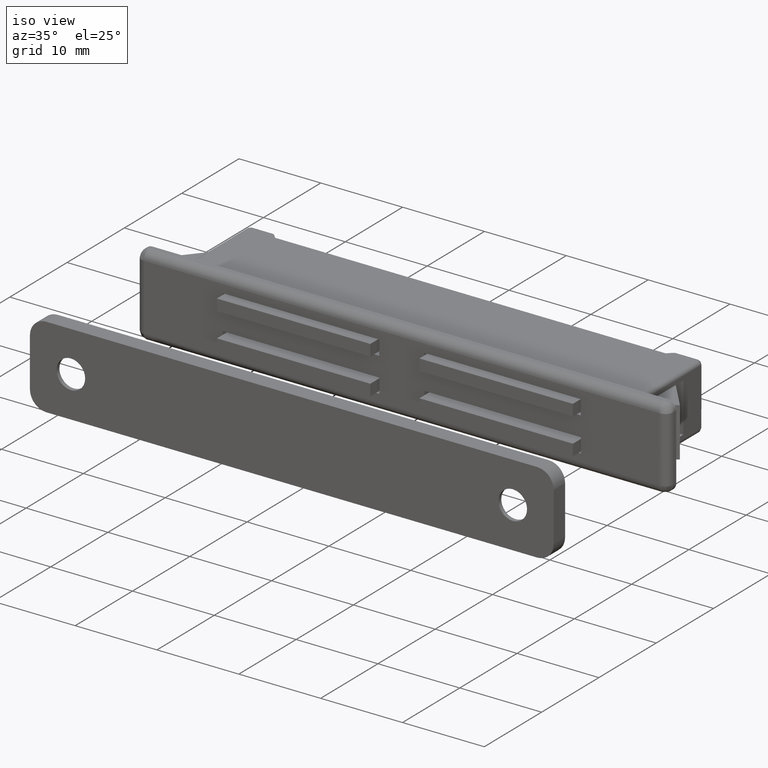
[diagram: clean part render]
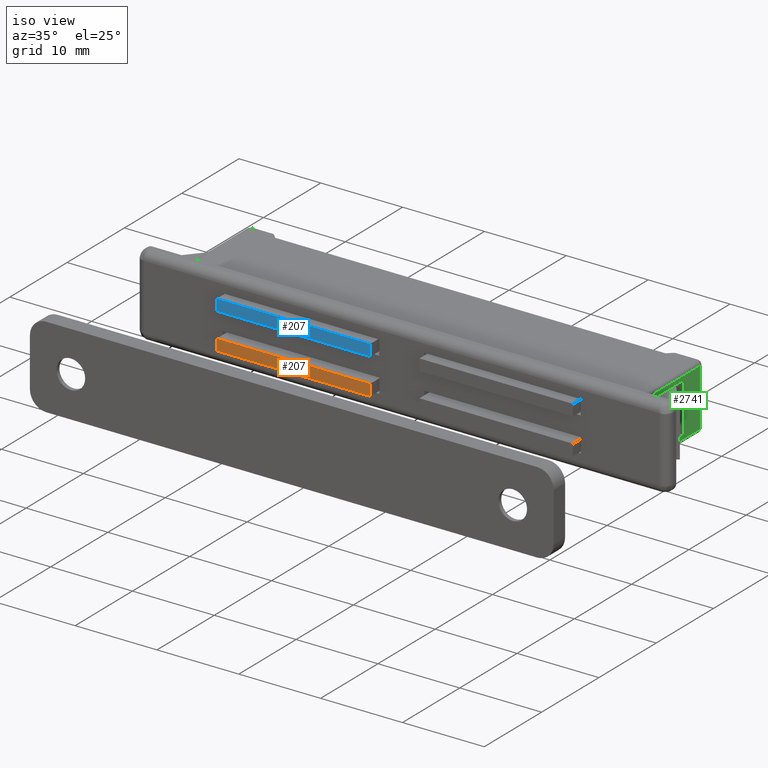
[diagram: same view with three faces highlighted in distinct colors, each labeled with its STEP entity id]
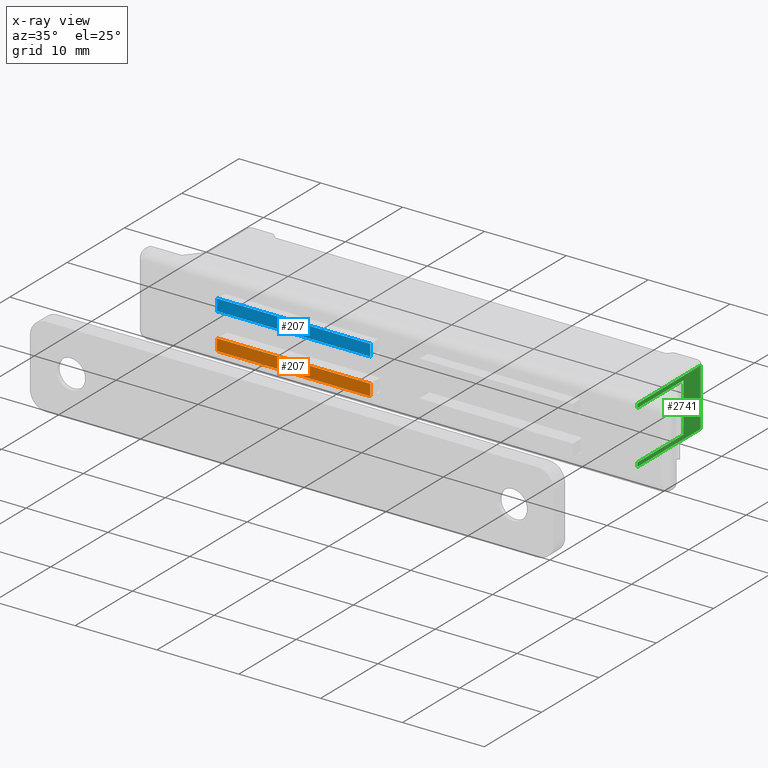
[diagram: x-ray of the same camera — body ghosted, the three highlighted faces saturated]
A machine part, iso view with three faces highlighted in distinct colors.
The next image is the same camera in x-ray (body ghosted, the three faces saturated) — at least one of them is partly hidden behind the body in this view.
Their STEP definitions:

[orange] entity #207 — the highlighted face is a freeform B-spline surface patch.
#86=CARTESIAN_POINT('',(-21.750007000000000,-14.199997000000000,2.899993999999960));
#87=VERTEX_POINT('',#86);
#93=CARTESIAN_POINT('',(-3.0,-14.199997000000000,2.899993999999960));
#94=VERTEX_POINT('',#93);
#95=CARTESIAN_POINT('',(-21.750007000000000,-14.199997000000000,2.899993999999960));
#96=CARTESIAN_POINT('',(-3.0,-14.199997000000000,2.899993999999960));
#97=QUASI_UNIFORM_CURVE('',1,(#95,#96),.UNSPECIFIED.,.F.,.U.);
#98=EDGE_CURVE('',#87,#94,#97,.T.);
#122=CARTESIAN_POINT('',(-3.0,-14.199997000000000,1.499999999999946));
#123=VERTEX_POINT('',#122);
#129=CARTESIAN_POINT('',(-21.750007000000000,-14.199997000000000,1.499999999999946));
#130=VERTEX_POINT('',#129);
#131=CARTESIAN_POINT('',(-21.750007000000000,-14.199997000000000,1.499999999999946));
#132=CARTESIAN_POINT('',(-3.0,-14.199997000000000,1.499999999999946));
#133=QUASI_UNIFORM_CURVE('',1,(#131,#132),.UNSPECIFIED.,.F.,.U.);
#134=EDGE_CURVE('',#130,#123,#133,.T.);
#178=CARTESIAN_POINT('',(-3.0,-14.199997000000000,1.499999999999946));
#179=CARTESIAN_POINT('',(-3.0,-14.199997000000000,2.899993999999960));
#180=QUASI_UNIFORM_CURVE('',1,(#178,#179),.UNSPECIFIED.,.F.,.U.);
#181=EDGE_CURVE('',#123,#94,#180,.T.);
#192=CARTESIAN_POINT('',(-22.686570517355449,-14.199997000000000,2.969923592449365));
#193=CARTESIAN_POINT('',(-22.686570517355449,-14.199997000000000,1.430070269864402));
#194=CARTESIAN_POINT('',(-2.063436650282676,-14.199997000000000,2.969923592449365));
#195=CARTESIAN_POINT('',(-2.063436650282676,-14.199997000000000,1.430070269864402));
#196=B_SPLINE_SURFACE_WITH_KNOTS('',1,1,((#192,#194),(#193,#195)),.UNSPECIFIED.,.F.,.F.,.U.,(2,2),(2,2),(0.041708397530392,0.958291684425995),(0.0,20.623133867072770),.UNSPECIFIED.);
#197=ORIENTED_EDGE('',*,*,#98,.F.);
#198=CARTESIAN_POINT('',(-21.750007000000000,-14.199997000000000,1.499999999999946));
#199=CARTESIAN_POINT('',(-21.750007000000000,-14.199997000000000,2.899993999999960));
#200=QUASI_UNIFORM_CURVE('',1,(#198,#199),.UNSPECIFIED.,.F.,.U.);
#201=EDGE_CURVE('',#130,#87,#200,.T.);
#202=ORIENTED_EDGE('',*,*,#201,.F.);
#203=ORIENTED_EDGE('',*,*,#134,.T.);
#204=ORIENTED_EDGE('',*,*,#181,.T.);
#205=EDGE_LOOP('',(#197,#202,#203,#204));
#206=FACE_OUTER_BOUND('',#205,.T.);
#207=ADVANCED_FACE('',(#206),#196,.T.);

[blue] entity #207 — the highlighted face is a freeform B-spline surface patch.
#86=CARTESIAN_POINT('',(-21.750007000000000,-14.199997000000000,2.899993999999960));
#87=VERTEX_POINT('',#86);
#93=CARTESIAN_POINT('',(-3.0,-14.199997000000000,2.899993999999960));
#94=VERTEX_POINT('',#93);
#95=CARTESIAN_POINT('',(-21.750007000000000,-14.199997000000000,2.899993999999960));
#96=CARTESIAN_POINT('',(-3.0,-14.199997000000000,2.899993999999960));
#97=QUASI_UNIFORM_CURVE('',1,(#95,#96),.UNSPECIFIED.,.F.,.U.);
#98=EDGE_CURVE('',#87,#94,#97,.T.);
#122=CARTESIAN_POINT('',(-3.0,-14.199997000000000,1.499999999999946));
#123=VERTEX_POINT('',#122);
#129=CARTESIAN_POINT('',(-21.750007000000000,-14.199997000000000,1.499999999999946));
#130=VERTEX_POINT('',#129);
#131=CARTESIAN_POINT('',(-21.750007000000000,-14.199997000000000,1.499999999999946));
#132=CARTESIAN_POINT('',(-3.0,-14.199997000000000,1.499999999999946));
#133=QUASI_UNIFORM_CURVE('',1,(#131,#132),.UNSPECIFIED.,.F.,.U.);
#134=EDGE_CURVE('',#130,#123,#133,.T.);
#178=CARTESIAN_POINT('',(-3.0,-14.199997000000000,1.499999999999946));
#179=CARTESIAN_POINT('',(-3.0,-14.199997000000000,2.899993999999960));
#180=QUASI_UNIFORM_CURVE('',1,(#178,#179),.UNSPECIFIED.,.F.,.U.);
#181=EDGE_CURVE('',#123,#94,#180,.T.);
#192=CARTESIAN_POINT('',(-22.686570517355449,-14.199997000000000,2.969923592449365));
#193=CARTESIAN_POINT('',(-22.686570517355449,-14.199997000000000,1.430070269864402));
#194=CARTESIAN_POINT('',(-2.063436650282676,-14.199997000000000,2.969923592449365));
#195=CARTESIAN_POINT('',(-2.063436650282676,-14.199997000000000,1.430070269864402));
#196=B_SPLINE_SURFACE_WITH_KNOTS('',1,1,((#192,#194),(#193,#195)),.UNSPECIFIED.,.F.,.F.,.U.,(2,2),(2,2),(0.041708397530392,0.958291684425995),(0.0,20.623133867072770),.UNSPECIFIED.);
#197=ORIENTED_EDGE('',*,*,#98,.F.);
#198=CARTESIAN_POINT('',(-21.750007000000000,-14.199997000000000,1.499999999999946));
#199=CARTESIAN_POINT('',(-21.750007000000000,-14.199997000000000,2.899993999999960));
#200=QUASI_UNIFORM_CURVE('',1,(#198,#199),.UNSPECIFIED.,.F.,.U.);
#201=EDGE_CURVE('',#130,#87,#200,.T.);
#202=ORIENTED_EDGE('',*,*,#201,.F.);
#203=ORIENTED_EDGE('',*,*,#134,.T.);
#204=ORIENTED_EDGE('',*,*,#181,.T.);
#205=EDGE_LOOP('',(#197,#202,#203,#204));
#206=FACE_OUTER_BOUND('',#205,.T.);
#207=ADVANCED_FACE('',(#206),#196,.T.);

[green] entity #2741 — the highlighted face is a freeform B-spline surface patch.
#1872=CARTESIAN_POINT('',(27.750004000000001,-0.500000000000000,-3.499999999999950));
#1873=VERTEX_POINT('',#1872);
#1972=CARTESIAN_POINT('',(27.750004000000001,-11.500000000000000,-3.499999999999950));
#1973=VERTEX_POINT('',#1972);
#1990=CARTESIAN_POINT('',(27.750004000000001,-11.500000000000000,-3.499999999999950));
#1991=CARTESIAN_POINT('',(27.750004000000001,-0.500000000000000,-3.499999999999950));
#1992=QUASI_UNIFORM_CURVE('',1,(#1990,#1991),.UNSPECIFIED.,.F.,.U.);
#1993=EDGE_CURVE('',#1973,#1873,#1992,.T.);
#2082=CARTESIAN_POINT('',(27.750004000000001,-0.500000000000000,3.499999999999950));
#2083=VERTEX_POINT('',#2082);
#2122=CARTESIAN_POINT('',(27.750004000000001,-11.500000000000000,3.499999999999950));
#2123=VERTEX_POINT('',#2122);
#2136=CARTESIAN_POINT('',(27.750004000000001,-0.500000000000000,3.499999999999950));
#2137=CARTESIAN_POINT('',(27.750004000000001,-11.500000000000000,3.499999999999950));
#2138=QUASI_UNIFORM_CURVE('',1,(#2136,#2137),.UNSPECIFIED.,.F.,.U.);
#2139=EDGE_CURVE('',#2083,#2123,#2138,.T.);
#2634=CARTESIAN_POINT('',(27.750004000000029,-11.500007500000001,3.0));
#2635=VERTEX_POINT('',#2634);
#2641=CARTESIAN_POINT('',(27.750004000000029,-11.500007500000001,-3.0));
#2642=VERTEX_POINT('',#2641);
#2698=CARTESIAN_POINT('',(27.750004000000001,-12.049458059825250,3.849649986432588));
#2699=CARTESIAN_POINT('',(27.750004000000001,-12.049458059825250,-3.849650174187218));
#2700=CARTESIAN_POINT('',(27.750004000000001,0.049450658172982,3.849649986432587));
#2701=CARTESIAN_POINT('',(27.750004000000001,0.049450658172982,-3.849650174187218));
#2702=B_SPLINE_SURFACE_WITH_KNOTS('',1,1,((#2698,#2700),(#2699,#2701)),.UNSPECIFIED.,.F.,.F.,.U.,(2,2),(2,2),(0.0,7.699300160619806),(0.0,12.098908717998240),.UNSPECIFIED.);
#2703=CARTESIAN_POINT('',(27.750004000000001,-0.500000000000000,-3.499999999999950));
#2704=CARTESIAN_POINT('',(27.750004000000001,-0.500000000000000,3.499999999999950));
#2705=QUASI_UNIFORM_CURVE('',1,(#2703,#2704),.UNSPECIFIED.,.F.,.U.);
#2706=EDGE_CURVE('',#1873,#2083,#2705,.T.);
#2707=ORIENTED_EDGE('',*,*,#2706,.T.);
#2708=ORIENTED_EDGE('',*,*,#2139,.T.);
#2709=CARTESIAN_POINT('',(27.750004000000029,-11.500007500000001,3.0));
#2710=CARTESIAN_POINT('',(27.750004000000001,-11.500000000000000,3.499999999999950));
#2711=QUASI_UNIFORM_CURVE('',1,(#2709,#2710),.UNSPECIFIED.,.F.,.U.);
#2712=EDGE_CURVE('',#2635,#2123,#2711,.T.);
#2713=ORIENTED_EDGE('',*,*,#2712,.F.);
#2714=CARTESIAN_POINT('',(27.750004000000050,-3.500000000000000,3.0));
#2715=VERTEX_POINT('',#2714);
#2716=CARTESIAN_POINT('',(27.750004000000050,-3.500000000000000,3.0));
#2717=CARTESIAN_POINT('',(27.750004000000029,-11.500007500000001,3.0));
#2718=QUASI_UNIFORM_CURVE('',1,(#2716,#2717),.UNSPECIFIED.,.F.,.U.);
#2719=EDGE_CURVE('',#2715,#2635,#2718,.T.);
#2720=ORIENTED_EDGE('',*,*,#2719,.F.);
#2721=CARTESIAN_POINT('',(27.750004000000001,-3.500000000000000,-3.0));
#2722=VERTEX_POINT('',#2721);
#2723=CARTESIAN_POINT('',(27.750004000000001,-3.500000000000000,-3.0));
#2724=CARTESIAN_POINT('',(27.750004000000050,-3.500000000000000,3.0));
#2725=QUASI_UNIFORM_CURVE('',1,(#2723,#2724),.UNSPECIFIED.,.F.,.U.);
#2726=EDGE_CURVE('',#2722,#2715,#2725,.T.);
#2727=ORIENTED_EDGE('',*,*,#2726,.F.);
#2728=CARTESIAN_POINT('',(27.750004000000029,-11.500007500000001,-3.0));
#2729=CARTESIAN_POINT('',(27.750004000000001,-3.500000000000000,-3.0));
#2730=QUASI_UNIFORM_CURVE('',1,(#2728,#2729),.UNSPECIFIED.,.F.,.U.);
#2731=EDGE_CURVE('',#2642,#2722,#2730,.T.);
#2732=ORIENTED_EDGE('',*,*,#2731,.F.);
#2733=CARTESIAN_POINT('',(27.750004000000001,-11.500000000000000,-3.499999999999950));
#2734=CARTESIAN_POINT('',(27.750004000000029,-11.500007500000001,-3.0));
#2735=QUASI_UNIFORM_CURVE('',1,(#2733,#2734),.UNSPECIFIED.,.F.,.U.);
#2736=EDGE_CURVE('',#1973,#2642,#2735,.T.);
#2737=ORIENTED_EDGE('',*,*,#2736,.F.);
#2738=ORIENTED_EDGE('',*,*,#1993,.T.);
#2739=EDGE_LOOP('',(#2707,#2708,#2713,#2720,#2727,#2732,#2737,#2738));
#2740=FACE_OUTER_BOUND('',#2739,.T.);
#2741=ADVANCED_FACE('',(#2740),#2702,.T.);